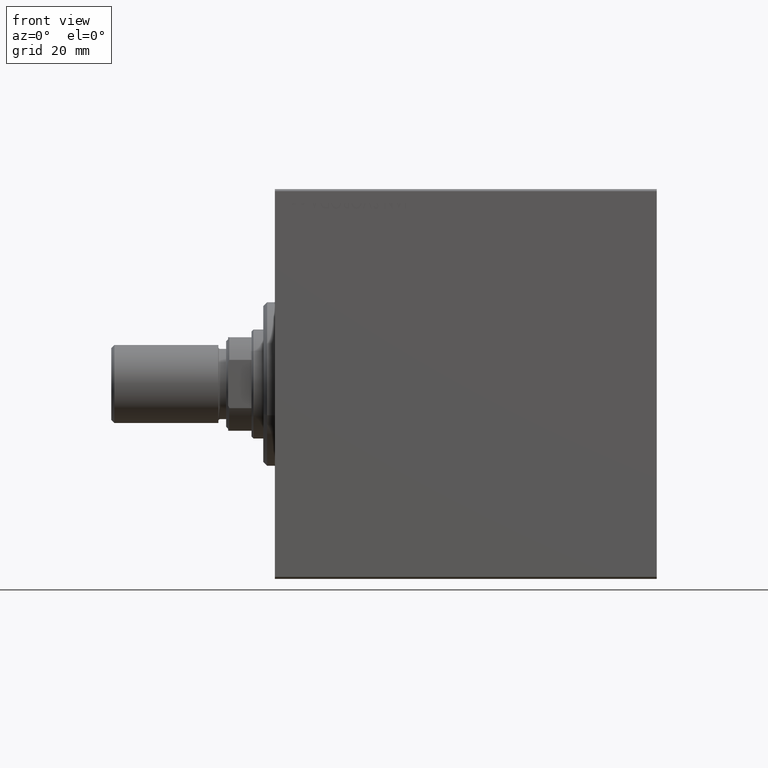
[diagram: clean part render]
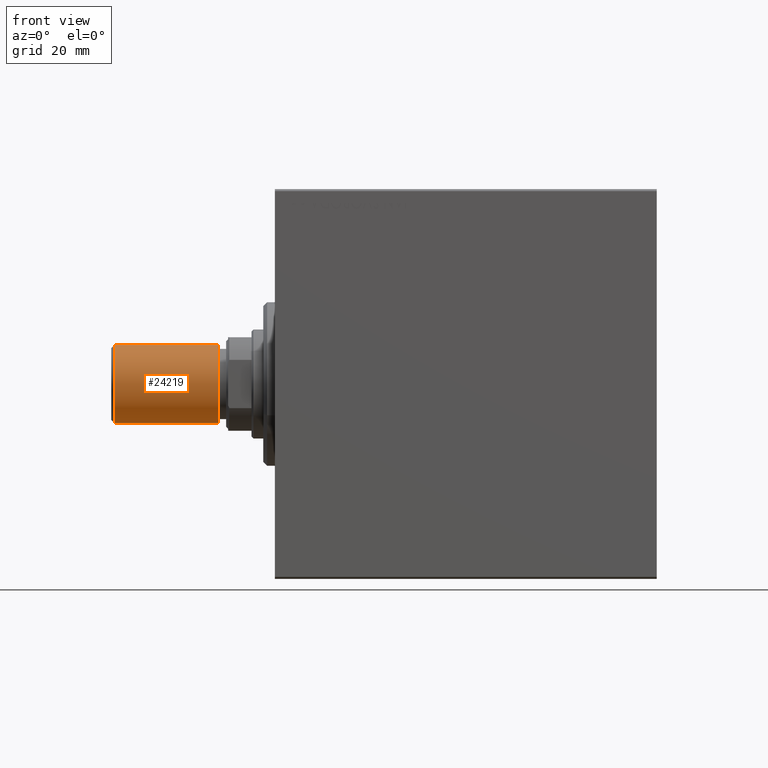
[diagram: same view with one face highlighted and labeled with its STEP entity id]
A machine part, front view. The second image highlights one B-rep face of the part: STEP entity #24219.
In plain terms, the highlighted cylindrical surface (partial cylindrical patch) has radius 10 mm, axis along (-1, -0, 0).
Its self-contained STEP definition (entity closure, byte-faithful):
#305 = DIRECTION ( 'NONE',  ( -0.000000000000000000, -0.000000000000000000, 1.000000000000000000 ) ) ;
#522 = DIRECTION ( 'NONE',  ( 1.000000000000000000, 0.000000000000000000, 0.000000000000000000 ) ) ;
#1328 = VERTEX_POINT ( 'NONE', #38689 ) ;
#1541 = DIRECTION ( 'NONE',  ( -0.000000000000000000, -0.000000000000000000, -1.000000000000000000 ) ) ;
#3761 = CIRCLE ( 'NONE', #9482, 10.00000000000000000 ) ;
#4703 = DIRECTION ( 'NONE',  ( -0.000000000000000000, -0.000000000000000000, -1.000000000000000000 ) ) ;
#6058 = FACE_OUTER_BOUND ( 'NONE', #20271, .T. ) ;
#6493 = CYLINDRICAL_SURFACE ( 'NONE', #33043, 10.00000000000000000 ) ;
#7498 = VERTEX_POINT ( 'NONE', #8278 ) ;
#8278 = CARTESIAN_POINT ( 'NONE',  ( 10.00000000000000000, 1.224646799147353256E-15, 27.50000000000000000 ) ) ;
#9482 = AXIS2_PLACEMENT_3D ( 'NONE', #43606, #305, #522 ) ;
#11572 = LINE ( 'NONE', #25182, #43981 ) ;
#12161 = AXIS2_PLACEMENT_3D ( 'NONE', #32611, #15665, #29931 ) ;
#12200 = EDGE_CURVE ( 'NONE', #41853, #7498, #33554, .T. ) ;
#13285 = EDGE_CURVE ( 'NONE', #41853, #26599, #18294, .T. ) ;
#15665 = DIRECTION ( 'NONE',  ( 0.000000000000000000, 0.000000000000000000, 1.000000000000000000 ) ) ;
#16239 = ORIENTED_EDGE ( 'NONE', *, *, #12200, .F. ) ;
#17241 = ORIENTED_EDGE ( 'NONE', *, *, #13285, .T. ) ;
#17473 = EDGE_CURVE ( 'NONE', #26599, #1328, #3761, .T. ) ;
#18294 = LINE ( 'NONE', #21215, #43578 ) ;
#20271 = EDGE_LOOP ( 'NONE', ( #40896, #16239, #17241, #34771 ) ) ;
#21215 = CARTESIAN_POINT ( 'NONE',  ( -10.00000000000000000, 0.000000000000000000, 27.50000000000000000 ) ) ;
#24219 = ADVANCED_FACE ( 'NONE', ( #6058 ), #6493, .T. ) ;
#25182 = CARTESIAN_POINT ( 'NONE',  ( 10.00000000000000000, 1.224646799147353256E-15, 27.50000000000000000 ) ) ;
#26599 = VERTEX_POINT ( 'NONE', #39879 ) ;
#29931 = DIRECTION ( 'NONE',  ( 1.000000000000000000, 0.000000000000000000, 0.000000000000000000 ) ) ;
#32611 = CARTESIAN_POINT ( 'NONE',  ( 0.000000000000000000, 0.000000000000000000, 27.50000000000000000 ) ) ;
#33043 = AXIS2_PLACEMENT_3D ( 'NONE', #33251, #40191, #43089 ) ;
#33251 = CARTESIAN_POINT ( 'NONE',  ( 0.000000000000000000, 0.000000000000000000, 27.50000000000000000 ) ) ;
#33554 = CIRCLE ( 'NONE', #12161, 10.00000000000000000 ) ;
#33827 = EDGE_CURVE ( 'NONE', #7498, #1328, #11572, .T. ) ;
#34771 = ORIENTED_EDGE ( 'NONE', *, *, #17473, .T. ) ;
#35751 = CARTESIAN_POINT ( 'NONE',  ( -10.00000000000000000, 0.000000000000000000, 27.50000000000000000 ) ) ;
#38689 = CARTESIAN_POINT ( 'NONE',  ( 10.00000000000000000, 1.224646799147353256E-15, 0.7999999999999986011 ) ) ;
#39879 = CARTESIAN_POINT ( 'NONE',  ( -10.00000000000000000, 0.000000000000000000, 0.7999999999999986011 ) ) ;
#40191 = DIRECTION ( 'NONE',  ( -0.000000000000000000, -0.000000000000000000, -1.000000000000000000 ) ) ;
#40896 = ORIENTED_EDGE ( 'NONE', *, *, #33827, .F. ) ;
#41853 = VERTEX_POINT ( 'NONE', #35751 ) ;
#43089 = DIRECTION ( 'NONE',  ( -1.000000000000000000, 0.000000000000000000, 0.000000000000000000 ) ) ;
#43578 = VECTOR ( 'NONE', #4703, 1000.000000000000000 ) ;
#43606 = CARTESIAN_POINT ( 'NONE',  ( 0.000000000000000000, 0.000000000000000000, 0.7999999999999986011 ) ) ;
#43981 = VECTOR ( 'NONE', #1541, 1000.000000000000000 ) ;